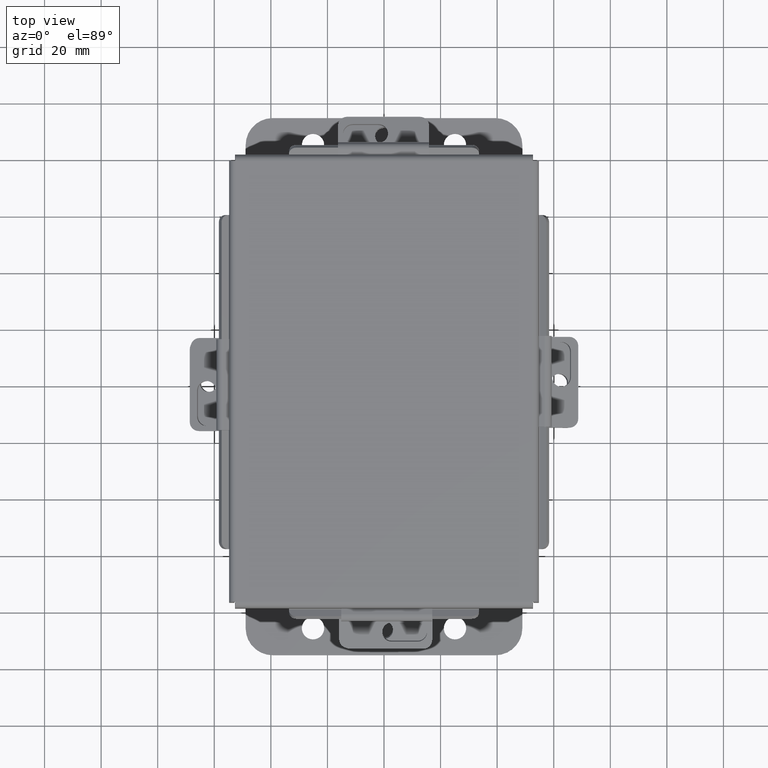
[diagram: clean part render]
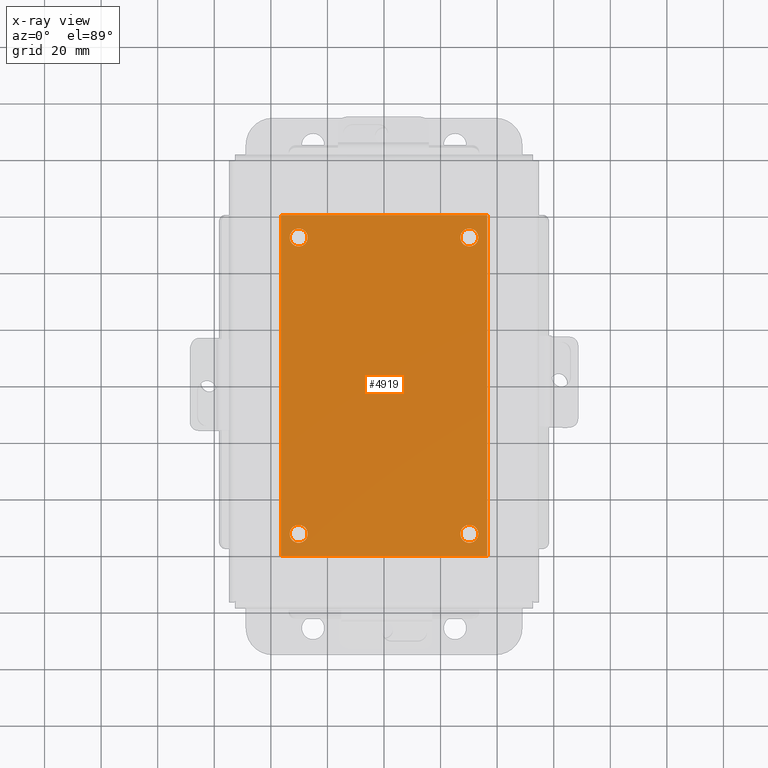
[diagram: x-ray — body ghosted, one internal face saturated and labeled with its STEP entity id]
A machine part, top view, then the same camera in x-ray: the body is ghosted and one INTERNAL B-rep face — a face not visible from any outside direction — is saturated and labeled: STEP entity #4919.
In plain terms, the highlighted planar face has unit normal (0, 0, -1).
Its self-contained STEP definition (entity closure, byte-faithful):
#170 = VERTEX_POINT ( 'NONE', #5777 ) ;
#315 = EDGE_LOOP ( 'NONE', ( #6072, #8357, #2075, #5162 ) ) ;
#319 = CARTESIAN_POINT ( 'NONE',  ( 0.0000000000000000000, 0.0000000000000000000, -0.07470000000000003000 ) ) ;
#340 = LINE ( 'NONE', #1697, #5559 ) ;
#397 = CARTESIAN_POINT ( 'NONE',  ( 2.875000000000000400, 4.749999999999999100, -0.07470000000000003000 ) ) ;
#411 = DIRECTION ( 'NONE',  ( -0.0000000000000000000, -0.0000000000000000000, 1.000000000000000000 ) ) ;
#437 = ORIENTED_EDGE ( 'NONE', *, *, #6946, .T. ) ;
#517 = CARTESIAN_POINT ( 'NONE',  ( 0.0000000000000000000, 0.0000000000000000000, -0.07470000000000003000 ) ) ;
#535 = VERTEX_POINT ( 'NONE', #7819 ) ;
#684 = EDGE_CURVE ( 'NONE', #1329, #4827, #6058, .T. ) ;
#709 = CARTESIAN_POINT ( 'NONE',  ( 2.500000000000000400, 4.438000000000001500, -0.07470000000000003000 ) ) ;
#759 = VERTEX_POINT ( 'NONE', #1525 ) ;
#903 = ORIENTED_EDGE ( 'NONE', *, *, #3209, .T. ) ;
#907 = DIRECTION ( 'NONE',  ( -0.0000000000000000000, -0.0000000000000000000, 1.000000000000000000 ) ) ;
#930 = FACE_BOUND ( 'NONE', #4580, .T. ) ;
#995 = ORIENTED_EDGE ( 'NONE', *, *, #2974, .T. ) ;
#1063 = EDGE_CURVE ( 'NONE', #170, #7378, #5248, .T. ) ;
#1089 = CARTESIAN_POINT ( 'NONE',  ( 2.875000000000000400, 0.0000000000000000000, -0.07470000000000003000 ) ) ;
#1225 = AXIS2_PLACEMENT_3D ( 'NONE', #3448, #8639, #4190 ) ;
#1255 = DIRECTION ( 'NONE',  ( 0.0000000000000000000, 0.0000000000000000000, -1.000000000000000000 ) ) ;
#1270 = CIRCLE ( 'NONE', #9574, 0.1250000000000000000 ) ;
#1296 = VECTOR ( 'NONE', #7024, 39.37007874015748100 ) ;
#1329 = VERTEX_POINT ( 'NONE', #9579 ) ;
#1332 = VERTEX_POINT ( 'NONE', #709 ) ;
#1355 = EDGE_LOOP ( 'NONE', ( #5343, #995 ) ) ;
#1374 = EDGE_LOOP ( 'NONE', ( #1463, #3079 ) ) ;
#1405 = VERTEX_POINT ( 'NONE', #2246 ) ;
#1437 = AXIS2_PLACEMENT_3D ( 'NONE', #3643, #8851, #4394 ) ;
#1454 = CARTESIAN_POINT ( 'NONE',  ( 2.625000000000002700, 0.3119999999999995600, -0.07470000000000003000 ) ) ;
#1463 = ORIENTED_EDGE ( 'NONE', *, *, #6076, .T. ) ;
#1525 = CARTESIAN_POINT ( 'NONE',  ( 0.0000000000000000000, 4.749999999999999100, -0.07470000000000003000 ) ) ;
#1697 = CARTESIAN_POINT ( 'NONE',  ( 0.0000000000000000000, 4.749999999999999100, -0.07470000000000003000 ) ) ;
#1713 = CARTESIAN_POINT ( 'NONE',  ( 0.1250000000000019200, 0.3120000000000015000, -0.07470000000000003000 ) ) ;
#1805 = DIRECTION ( 'NONE',  ( 1.000000000000000000, 0.0000000000000000000, 0.0000000000000000000 ) ) ;
#1880 = CARTESIAN_POINT ( 'NONE',  ( 2.500000000000002700, 0.3119999999999995600, -0.07470000000000003000 ) ) ;
#2027 = CIRCLE ( 'NONE', #9606, 0.1249999999999999000 ) ;
#2075 = ORIENTED_EDGE ( 'NONE', *, *, #1063, .F. ) ;
#2198 = DIRECTION ( 'NONE',  ( -1.000000000000000000, 0.0000000000000000000, 0.0000000000000000000 ) ) ;
#2246 = CARTESIAN_POINT ( 'NONE',  ( 0.0000000000000000000, 0.0000000000000000000, -0.07470000000000003000 ) ) ;
#2316 = CARTESIAN_POINT ( 'NONE',  ( 0.1249999999999997900, 4.437999999999999700, -0.07470000000000003000 ) ) ;
#2422 = CARTESIAN_POINT ( 'NONE',  ( 2.625000000000000400, 4.438000000000001500, -0.07470000000000003000 ) ) ;
#2510 = ORIENTED_EDGE ( 'NONE', *, *, #2743, .T. ) ;
#2568 = CARTESIAN_POINT ( 'NONE',  ( 0.0000000000000000000, 0.0000000000000000000, -0.07470000000000003000 ) ) ;
#2743 = EDGE_CURVE ( 'NONE', #6563, #2982, #1270, .T. ) ;
#2891 = FACE_BOUND ( 'NONE', #3366, .T. ) ;
#2974 = EDGE_CURVE ( 'NONE', #4684, #535, #8816, .T. ) ;
#2982 = VERTEX_POINT ( 'NONE', #4518 ) ;
#3079 = ORIENTED_EDGE ( 'NONE', *, *, #7995, .T. ) ;
#3151 = CARTESIAN_POINT ( 'NONE',  ( 2.625000000000000400, 4.438000000000001500, -0.07470000000000003000 ) ) ;
#3156 = EDGE_CURVE ( 'NONE', #1405, #170, #3930, .T. ) ;
#3168 = DIRECTION ( 'NONE',  ( -1.000000000000000000, 0.0000000000000000000, 0.0000000000000000000 ) ) ;
#3209 = EDGE_CURVE ( 'NONE', #2982, #6563, #3470, .T. ) ;
#3366 = EDGE_LOOP ( 'NONE', ( #5701, #437 ) ) ;
#3448 = CARTESIAN_POINT ( 'NONE',  ( 2.625000000000002700, 0.3119999999999995600, -0.07470000000000003000 ) ) ;
#3470 = CIRCLE ( 'NONE', #5235, 0.1250000000000000000 ) ;
#3643 = CARTESIAN_POINT ( 'NONE',  ( 0.2500000000000020000, 0.3120000000000015000, -0.07470000000000003000 ) ) ;
#3786 = CIRCLE ( 'NONE', #1225, 0.1249999999999999000 ) ;
#3891 = DIRECTION ( 'NONE',  ( -1.000000000000000000, 0.0000000000000000000, 0.0000000000000000000 ) ) ;
#3930 = LINE ( 'NONE', #319, #7649 ) ;
#4089 = CARTESIAN_POINT ( 'NONE',  ( 0.2499999999999998100, 4.437999999999999700, -0.07470000000000003000 ) ) ;
#4190 = DIRECTION ( 'NONE',  ( -1.000000000000000000, 0.0000000000000000000, 0.0000000000000000000 ) ) ;
#4251 = VECTOR ( 'NONE', #9292, 39.37007874015748100 ) ;
#4267 = AXIS2_PLACEMENT_3D ( 'NONE', #3151, #8355, #3891 ) ;
#4394 = DIRECTION ( 'NONE',  ( -1.000000000000000000, 0.0000000000000000000, 0.0000000000000000000 ) ) ;
#4518 = CARTESIAN_POINT ( 'NONE',  ( 0.3749999999999998300, 4.437999999999999700, -0.07470000000000003000 ) ) ;
#4580 = EDGE_LOOP ( 'NONE', ( #903, #2510 ) ) ;
#4684 = VERTEX_POINT ( 'NONE', #1713 ) ;
#4826 = DIRECTION ( 'NONE',  ( -1.000000000000000000, 0.0000000000000000000, 0.0000000000000000000 ) ) ;
#4827 = VERTEX_POINT ( 'NONE', #1880 ) ;
#4850 = CARTESIAN_POINT ( 'NONE',  ( 0.2499999999999998100, 4.437999999999999700, -0.07470000000000003000 ) ) ;
#4919 = ADVANCED_FACE ( 'NONE', ( #7082, #2891, #6848, #930, #8594 ), #4955, .T. ) ;
#4955 = PLANE ( 'NONE',  #6005 ) ;
#5091 = VERTEX_POINT ( 'NONE', #8120 ) ;
#5162 = ORIENTED_EDGE ( 'NONE', *, *, #3156, .F. ) ;
#5235 = AXIS2_PLACEMENT_3D ( 'NONE', #4850, #411, #5608 ) ;
#5248 = LINE ( 'NONE', #1089, #1296 ) ;
#5343 = ORIENTED_EDGE ( 'NONE', *, *, #8963, .T. ) ;
#5350 = CARTESIAN_POINT ( 'NONE',  ( 0.2500000000000020000, 0.3120000000000015000, -0.07470000000000003000 ) ) ;
#5357 = EDGE_CURVE ( 'NONE', #7378, #759, #340, .T. ) ;
#5559 = VECTOR ( 'NONE', #6899, 39.37007874015748100 ) ;
#5608 = DIRECTION ( 'NONE',  ( -1.000000000000000000, 0.0000000000000000000, 0.0000000000000000000 ) ) ;
#5701 = ORIENTED_EDGE ( 'NONE', *, *, #684, .T. ) ;
#5777 = CARTESIAN_POINT ( 'NONE',  ( 2.875000000000000400, 0.0000000000000000000, -0.07470000000000003000 ) ) ;
#6005 = AXIS2_PLACEMENT_3D ( 'NONE', #517, #1255, #6454 ) ;
#6058 = CIRCLE ( 'NONE', #8393, 0.1249999999999999000 ) ;
#6072 = ORIENTED_EDGE ( 'NONE', *, *, #6851, .F. ) ;
#6076 = EDGE_CURVE ( 'NONE', #5091, #1332, #6362, .T. ) ;
#6094 = DIRECTION ( 'NONE',  ( -1.000000000000000000, 0.0000000000000000000, 0.0000000000000000000 ) ) ;
#6228 = LINE ( 'NONE', #2568, #4251 ) ;
#6362 = CIRCLE ( 'NONE', #4267, 0.1249999999999999000 ) ;
#6454 = DIRECTION ( 'NONE',  ( -1.000000000000000000, 0.0000000000000000000, -0.0000000000000000000 ) ) ;
#6563 = VERTEX_POINT ( 'NONE', #2316 ) ;
#6650 = DIRECTION ( 'NONE',  ( -0.0000000000000000000, -0.0000000000000000000, 1.000000000000000000 ) ) ;
#6848 = FACE_BOUND ( 'NONE', #1374, .T. ) ;
#6851 = EDGE_CURVE ( 'NONE', #759, #1405, #6228, .T. ) ;
#6894 = CIRCLE ( 'NONE', #1437, 0.1250000000000000600 ) ;
#6899 = DIRECTION ( 'NONE',  ( -1.000000000000000000, -0.0000000000000000000, -0.0000000000000000000 ) ) ;
#6946 = EDGE_CURVE ( 'NONE', #4827, #1329, #3786, .T. ) ;
#7024 = DIRECTION ( 'NONE',  ( 0.0000000000000000000, 1.000000000000000000, 0.0000000000000000000 ) ) ;
#7082 = FACE_BOUND ( 'NONE', #1355, .T. ) ;
#7378 = VERTEX_POINT ( 'NONE', #397 ) ;
#7409 = AXIS2_PLACEMENT_3D ( 'NONE', #5350, #907, #6094 ) ;
#7622 = DIRECTION ( 'NONE',  ( -0.0000000000000000000, -0.0000000000000000000, 1.000000000000000000 ) ) ;
#7649 = VECTOR ( 'NONE', #1805, 39.37007874015748100 ) ;
#7819 = CARTESIAN_POINT ( 'NONE',  ( 0.3750000000000020000, 0.3120000000000015000, -0.07470000000000003000 ) ) ;
#7995 = EDGE_CURVE ( 'NONE', #1332, #5091, #2027, .T. ) ;
#8120 = CARTESIAN_POINT ( 'NONE',  ( 2.750000000000000400, 4.438000000000001500, -0.07470000000000003000 ) ) ;
#8355 = DIRECTION ( 'NONE',  ( -0.0000000000000000000, -0.0000000000000000000, 1.000000000000000000 ) ) ;
#8357 = ORIENTED_EDGE ( 'NONE', *, *, #5357, .F. ) ;
#8393 = AXIS2_PLACEMENT_3D ( 'NONE', #1454, #6650, #2198 ) ;
#8594 = FACE_OUTER_BOUND ( 'NONE', #315, .T. ) ;
#8639 = DIRECTION ( 'NONE',  ( -0.0000000000000000000, -0.0000000000000000000, 1.000000000000000000 ) ) ;
#8816 = CIRCLE ( 'NONE', #7409, 0.1250000000000000600 ) ;
#8851 = DIRECTION ( 'NONE',  ( -0.0000000000000000000, -0.0000000000000000000, 1.000000000000000000 ) ) ;
#8963 = EDGE_CURVE ( 'NONE', #535, #4684, #6894, .T. ) ;
#9288 = DIRECTION ( 'NONE',  ( -0.0000000000000000000, -0.0000000000000000000, 1.000000000000000000 ) ) ;
#9292 = DIRECTION ( 'NONE',  ( -0.0000000000000000000, -1.000000000000000000, -0.0000000000000000000 ) ) ;
#9574 = AXIS2_PLACEMENT_3D ( 'NONE', #4089, #9288, #4826 ) ;
#9579 = CARTESIAN_POINT ( 'NONE',  ( 2.750000000000002700, 0.3119999999999995600, -0.07470000000000003000 ) ) ;
#9606 = AXIS2_PLACEMENT_3D ( 'NONE', #2422, #7622, #3168 ) ;